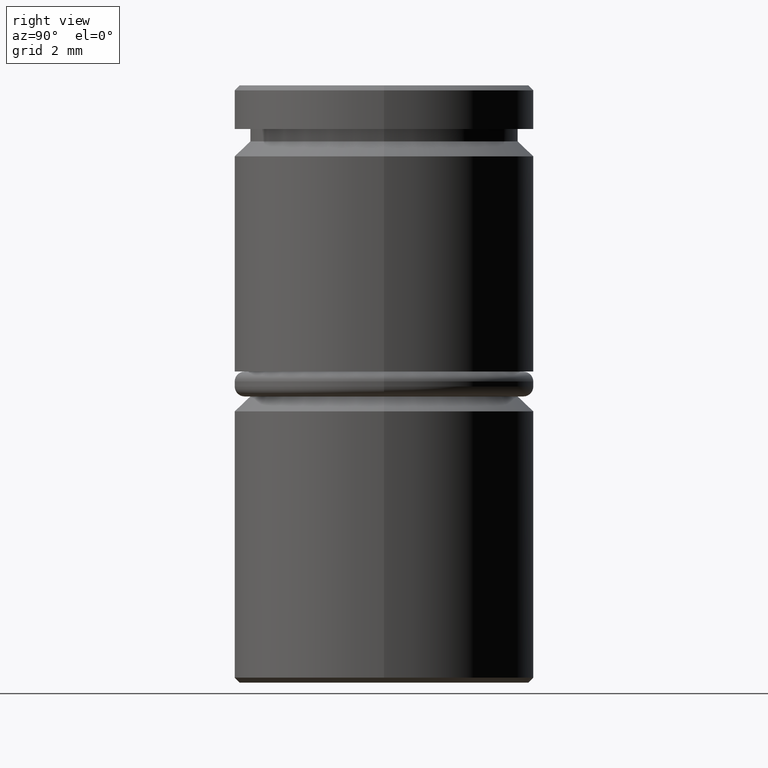
[diagram: clean part render]
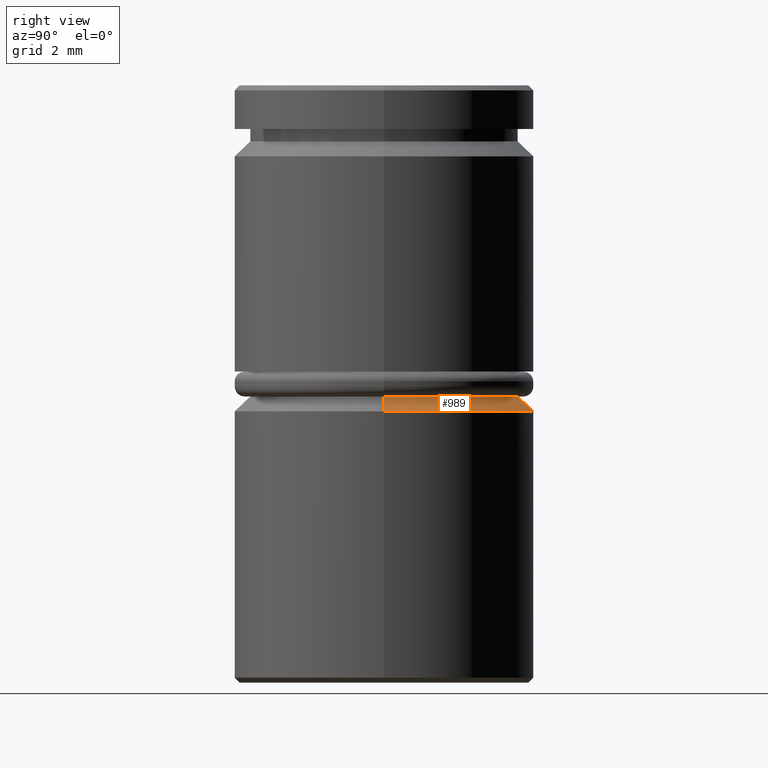
[diagram: same view with one face highlighted and labeled with its STEP entity id]
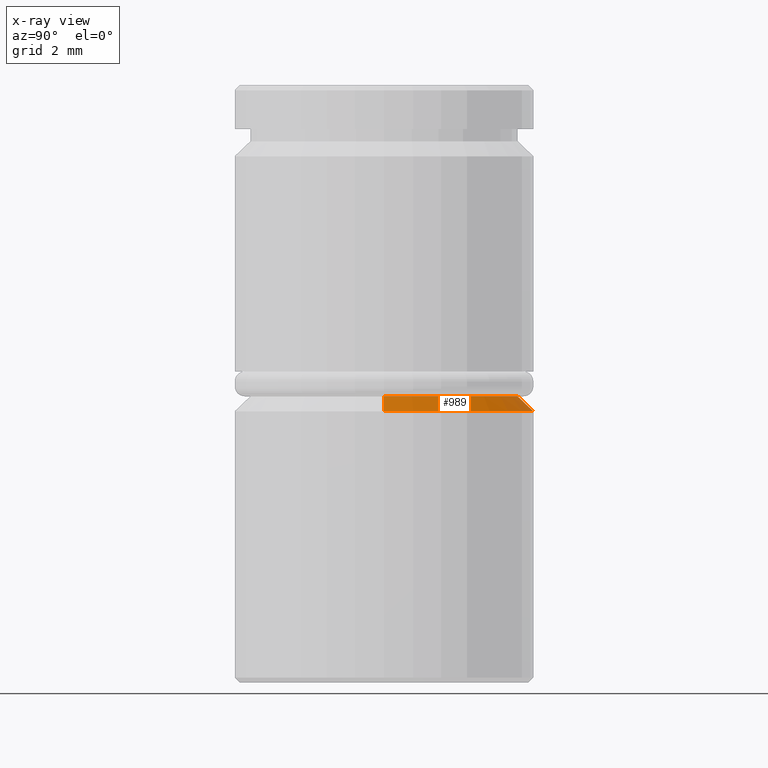
[diagram: x-ray of the same camera — body ghosted, the highlighted face saturated]
A machine part, right view. The second image highlights one B-rep face of the part: STEP entity #989.
The next image is the same camera in x-ray: the body ghosted, the highlighted face saturated — about 0% of this face is hidden behind the body in this view.
In plain terms, the highlighted conical surface has half-angle 45 deg.
Its self-contained STEP definition (entity closure, byte-faithful):
#15 = DIRECTION ( 'NONE',  ( 1.000000000000000000, 0.000000000000000000, 0.000000000000000000 ) ) ;
#63 = VERTEX_POINT ( 'NONE', #532 ) ;
#103 = VERTEX_POINT ( 'NONE', #988 ) ;
#154 = CARTESIAN_POINT ( 'NONE',  ( -2.700000000000005063, 0.000000000000000000, -6.250000000000000000 ) ) ;
#162 = AXIS2_PLACEMENT_3D ( 'NONE', #386, #833, #15 ) ;
#180 = AXIS2_PLACEMENT_3D ( 'NONE', #284, #667, #927 ) ;
#188 = LINE ( 'NONE', #648, #610 ) ;
#284 = CARTESIAN_POINT ( 'NONE',  ( 0.000000000000000000, 0.000000000000000000, -6.549999999999997158 ) ) ;
#286 = ORIENTED_EDGE ( 'NONE', *, *, #627, .F. ) ;
#311 = ORIENTED_EDGE ( 'NONE', *, *, #651, .F. ) ;
#338 = EDGE_CURVE ( 'NONE', #425, #63, #596, .T. ) ;
#345 = EDGE_LOOP ( 'NONE', ( #311, #380, #286, #767 ) ) ;
#374 = CARTESIAN_POINT ( 'NONE',  ( 0.000000000000000000, 0.000000000000000000, -6.250000000000000000 ) ) ;
#380 = ORIENTED_EDGE ( 'NONE', *, *, #1063, .T. ) ;
#386 = CARTESIAN_POINT ( 'NONE',  ( 0.000000000000000000, 0.000000000000000000, -6.250000000000000000 ) ) ;
#414 = DIRECTION ( 'NONE',  ( -0.7071067811865460184, 0.000000000000000000, -0.7071067811865490160 ) ) ;
#425 = VERTEX_POINT ( 'NONE', #919 ) ;
#463 = CARTESIAN_POINT ( 'NONE',  ( 2.700000000000000178, 0.000000000000000000, -6.250000000000000000 ) ) ;
#488 = CONICAL_SURFACE ( 'NONE', #1060, 2.700000000000005063, 0.7853981633974460586 ) ;
#507 = VERTEX_POINT ( 'NONE', #463 ) ;
#532 = CARTESIAN_POINT ( 'NONE',  ( -3.000000000000000000, 3.673940397442059868E-16, -6.549999999999997158 ) ) ;
#557 = DIRECTION ( 'NONE',  ( 0.7071067811865460184, 8.659560562354913137E-17, -0.7071067811865490160 ) ) ;
#560 = DIRECTION ( 'NONE',  ( 0.000000000000000000, 0.000000000000000000, -1.000000000000000000 ) ) ;
#596 = LINE ( 'NONE', #154, #604 ) ;
#604 = VECTOR ( 'NONE', #414, 1000.000000000000114 ) ;
#610 = VECTOR ( 'NONE', #557, 1000.000000000000114 ) ;
#627 = EDGE_CURVE ( 'NONE', #63, #103, #701, .T. ) ;
#648 = CARTESIAN_POINT ( 'NONE',  ( 2.700000000000005063, 3.306546357697859650E-16, -6.250000000000000000 ) ) ;
#651 = EDGE_CURVE ( 'NONE', #507, #425, #1155, .T. ) ;
#665 = FACE_OUTER_BOUND ( 'NONE', #345, .T. ) ;
#667 = DIRECTION ( 'NONE',  ( 0.000000000000000000, 0.000000000000000000, -1.000000000000000000 ) ) ;
#701 = CIRCLE ( 'NONE', #180, 3.000000000000000000 ) ;
#767 = ORIENTED_EDGE ( 'NONE', *, *, #338, .F. ) ;
#833 = DIRECTION ( 'NONE',  ( -0.000000000000000000, -0.000000000000000000, 1.000000000000000000 ) ) ;
#919 = CARTESIAN_POINT ( 'NONE',  ( -2.700000000000000178, 3.306546357697853733E-16, -6.250000000000000000 ) ) ;
#927 = DIRECTION ( 'NONE',  ( 1.000000000000000000, 0.000000000000000000, 0.000000000000000000 ) ) ;
#988 = CARTESIAN_POINT ( 'NONE',  ( 3.000000000000000000, 0.000000000000000000, -6.549999999999997158 ) ) ;
#989 = ADVANCED_FACE ( 'NONE', ( #665 ), #488, .T. ) ;
#1060 = AXIS2_PLACEMENT_3D ( 'NONE', #374, #560, #1101 ) ;
#1063 = EDGE_CURVE ( 'NONE', #507, #103, #188, .T. ) ;
#1101 = DIRECTION ( 'NONE',  ( -1.000000000000000000, 0.000000000000000000, 0.000000000000000000 ) ) ;
#1155 = CIRCLE ( 'NONE', #162, 2.700000000000000178 ) ;